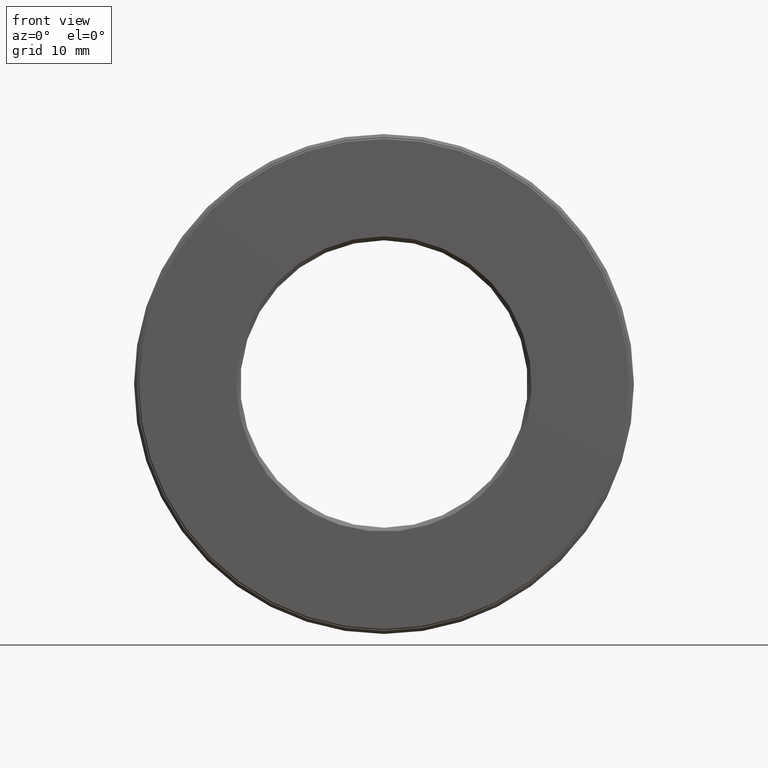
[diagram: clean part render]
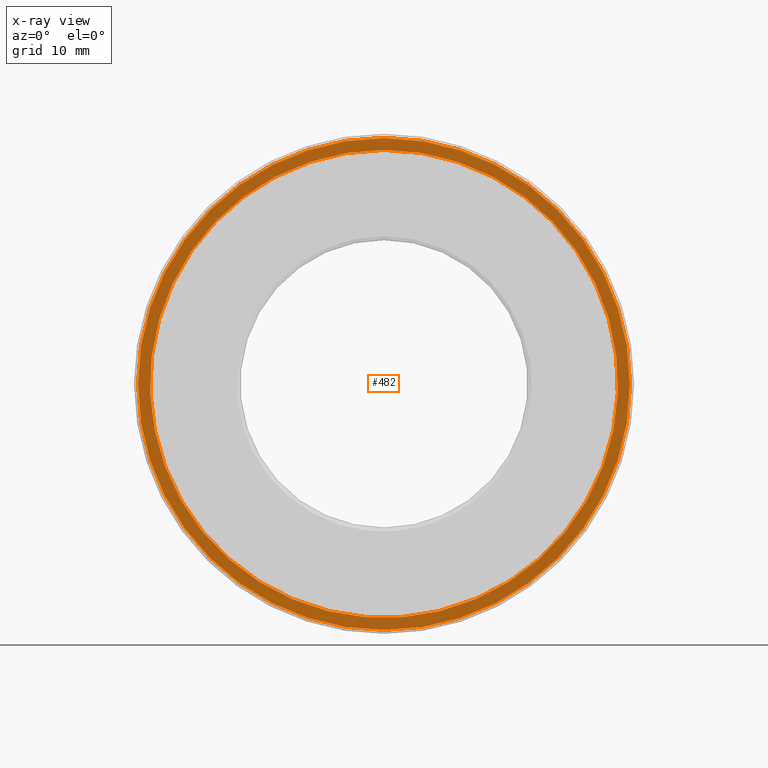
[diagram: x-ray — body ghosted, one internal face saturated and labeled with its STEP entity id]
A machine part, front view, then the same camera in x-ray: the body is ghosted and one INTERNAL B-rep face — a face not visible from any outside direction — is saturated and labeled: STEP entity #482.
In plain terms, the highlighted planar face has unit normal (-0, 1, 0).
Its self-contained STEP definition (entity closure, byte-faithful):
#5 = EDGE_LOOP ( 'NONE', ( #501 ) ) ;
#14 = PLANE ( 'NONE',  #450 ) ;
#44 = VERTEX_POINT ( 'NONE', #352 ) ;
#47 = EDGE_LOOP ( 'NONE', ( #535 ) ) ;
#63 = DIRECTION ( 'NONE',  ( -0.0000000000000000000, 1.000000000000000000, 0.0000000000000000000 ) ) ;
#83 = AXIS2_PLACEMENT_3D ( 'NONE', #243, #289, #107 ) ;
#92 = CARTESIAN_POINT ( 'NONE',  ( 0.0000000000000000000, 0.9024999999999998600, 0.0000000000000000000 ) ) ;
#107 = DIRECTION ( 'NONE',  ( 0.0000000000000000000, 0.0000000000000000000, 1.000000000000000000 ) ) ;
#113 = CARTESIAN_POINT ( 'NONE',  ( 0.0000000000000000000, 0.9024999999999998600, 1.170000000000000200 ) ) ;
#221 = CIRCLE ( 'NONE', #584, 1.230000000000000000 ) ;
#234 = DIRECTION ( 'NONE',  ( 0.0000000000000000000, 0.0000000000000000000, 1.000000000000000000 ) ) ;
#243 = CARTESIAN_POINT ( 'NONE',  ( 0.0000000000000000000, 0.9024999999999998600, 0.0000000000000000000 ) ) ;
#275 = VERTEX_POINT ( 'NONE', #113 ) ;
#280 = FACE_BOUND ( 'NONE', #47, .T. ) ;
#289 = DIRECTION ( 'NONE',  ( -0.0000000000000000000, 1.000000000000000000, -0.0000000000000000000 ) ) ;
#300 = EDGE_CURVE ( 'NONE', #44, #44, #221, .T. ) ;
#327 = DIRECTION ( 'NONE',  ( -0.0000000000000000000, 1.000000000000000000, -0.0000000000000000000 ) ) ;
#340 = CARTESIAN_POINT ( 'NONE',  ( 0.0000000000000000000, 0.9024999999999998600, 0.0000000000000000000 ) ) ;
#352 = CARTESIAN_POINT ( 'NONE',  ( 0.0000000000000000000, 0.9024999999999998600, 1.230000000000000000 ) ) ;
#371 = CIRCLE ( 'NONE', #83, 1.170000000000000200 ) ;
#377 = FACE_OUTER_BOUND ( 'NONE', #5, .T. ) ;
#408 = EDGE_CURVE ( 'NONE', #275, #275, #371, .T. ) ;
#424 = DIRECTION ( 'NONE',  ( 0.0000000000000000000, 0.0000000000000000000, 1.000000000000000000 ) ) ;
#450 = AXIS2_PLACEMENT_3D ( 'NONE', #340, #63, #234 ) ;
#482 = ADVANCED_FACE ( 'NONE', ( #377, #280 ), #14, .F. ) ;
#501 = ORIENTED_EDGE ( 'NONE', *, *, #300, .F. ) ;
#535 = ORIENTED_EDGE ( 'NONE', *, *, #408, .T. ) ;
#584 = AXIS2_PLACEMENT_3D ( 'NONE', #92, #327, #424 ) ;